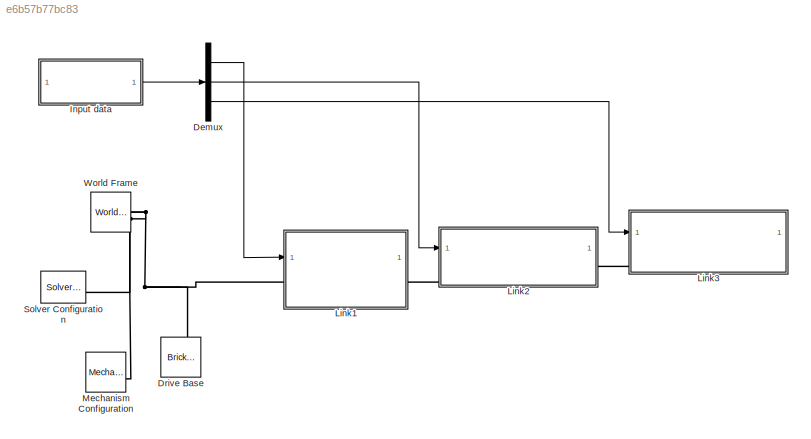
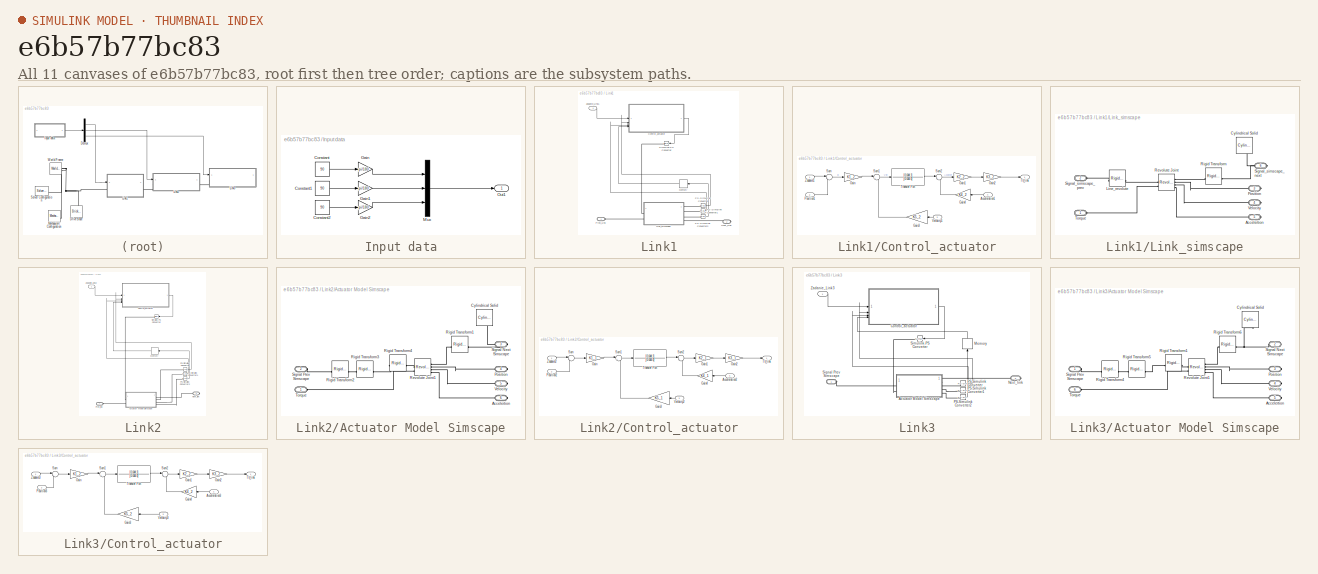
[diagram: thumbnail index - all 11 canvases of the model, root first then tree order]
MODEL slx_e6b57b77bc83
KIND model
CONFIG AbsTol = auto
CONFIG EnableMultiTasking = off
CONFIG FixedStep = 1e-3
CONFIG MaxStep = 1e-3
CONFIG MinStep = auto
CONFIG RelTol = 1e-3
CONFIG SampleTimeConstraint = Unconstrained
CONFIG SolverName = VariableStepAuto
CONFIG StartTime = 0.0
CONFIG StopTime = 5
BLOCK [Demux] Demux
  Outputs = 3
BLOCK [Reference] Drive Base  REF=sm_lib/Body Elements/Brick Solid
  NameLocation = right
  SourceBlock = sm_lib/Body Elements/Brick Solid
  SourceType = Brick Solid
BLOCK [SubSystem] Input data
BLOCK [Constant] Input data/Constant
  Value = 90
BLOCK [Constant] Input data/Constant1
  Value = 90
BLOCK [Constant] Input data/Constant2
  Value = 90
BLOCK [Gain] Input data/Gain
  Gain = pi/180
BLOCK [Gain] Input data/Gain1
  Gain = pi/180
BLOCK [Gain] Input data/Gain2
  Gain = pi/180
BLOCK [Mux] Input data/Mux
  DisplayOption = bar
  Inputs = 3
BLOCK [Outport] Input data/Out1
BLOCK [SubSystem] Link1
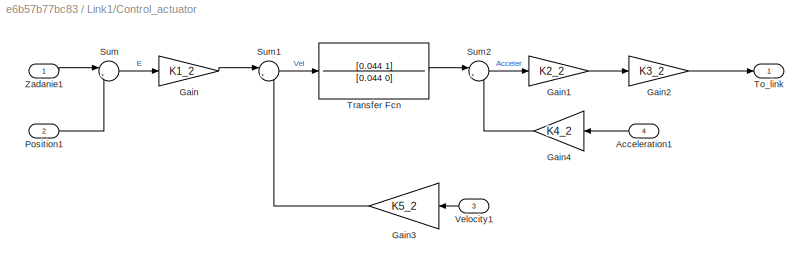
BLOCK [SubSystem] Link1/Control_actuator
BLOCK [Inport] Link1/Control_actuator/Acceleration1
  Port = 4
BLOCK [Gain] Link1/Control_actuator/Gain
  Gain = K1_2
BLOCK [Gain] Link1/Control_actuator/Gain1
  Gain = K2_2
BLOCK [Gain] Link1/Control_actuator/Gain2
  Gain = K3_2
BLOCK [Gain] Link1/Control_actuator/Gain3
  Gain = K5_2
  NameLocation = top
BLOCK [Gain] Link1/Control_actuator/Gain4
  Gain = K4_2
  NameLocation = top
BLOCK [Inport] Link1/Control_actuator/Position1
  Port = 2
BLOCK [Sum] Link1/Control_actuator/Sum
  Inputs = |+-
BLOCK [Sum] Link1/Control_actuator/Sum1
  Inputs = |+-
BLOCK [Sum] Link1/Control_actuator/Sum2
  Inputs = |+-
BLOCK [Outport] Link1/Control_actuator/To_link
BLOCK [TransferFcn] Link1/Control_actuator/Transfer Fcn
  Denominator = [0.044 0]
  Numerator = [0.044 1]
BLOCK [Inport] Link1/Control_actuator/Velocity1
  Port = 3
BLOCK [Inport] Link1/Control_actuator/Zadanie1
BLOCK [SubSystem] Link1/Link_simscape
BLOCK [PMIOPort] Link1/Link_simscape/Accelertion
  Port = 5
  Side = Right
BLOCK [Reference] Link1/Link_simscape/Cylindrical Solid  REF=sm_lib/Body Elements/Cylindrical Solid
  NameLocation = left
  SourceBlock = sm_lib/Body Elements/Cylindrical Solid
  SourceType = Cylindrical Solid
BLOCK [Reference] Link1/Link_simscape/Line_revolute  REF=sm_lib/Frames and
Transforms/Rigid
Transform
  SourceBlock = sm_lib/Frames and\nTransforms/Rigid\nTransform
  SourceType = Rigid\nTransform
BLOCK [PMIOPort] Link1/Link_simscape/Position
  Port = 3
  Side = Right
BLOCK [Reference] Link1/Link_simscape/Revolute Joint  REF=sm_lib/Joints/Revolute Joint
  SourceBlock = sm_lib/Joints/Revolute Joint
  SourceType = Revolute Joint
BLOCK [Reference] Link1/Link_simscape/Rigid Transform  REF=sm_lib/Frames and
Transforms/Rigid
Transform
  SourceBlock = sm_lib/Frames and\nTransforms/Rigid\nTransform
  SourceType = Rigid\nTransform
BLOCK [PMIOPort] Link1/Link_simscape/Signal_simscape_next
  Port = 6
  Side = Right
BLOCK [PMIOPort] Link1/Link_simscape/Signal_simscape_prev
  Port = 2
  Side = Left
BLOCK [PMIOPort] Link1/Link_simscape/Torque
  Side = Left
BLOCK [PMIOPort] Link1/Link_simscape/Velocity
  Port = 4
  Side = Right
BLOCK [Memory] Link1/Memory
  NameLocation = top
BLOCK [PMIOPort] Link1/Next_Link
  Port = 2
  Side = Right
BLOCK [Reference] Link1/PS-Simulink Converter  REF=nesl_utility/PS-Simulink
Converter
  SourceBlock = nesl_utility/PS-Simulink\nConverter
  SourceType = PS-Simulink\nConverter
BLOCK [Reference] Link1/PS-Simulink Converter1  REF=nesl_utility/PS-Simulink
Converter
  SourceBlock = nesl_utility/PS-Simulink\nConverter
  SourceType = PS-Simulink\nConverter
BLOCK [Reference] Link1/PS-Simulink Converter2  REF=nesl_utility/PS-Simulink
Converter
  SourceBlock = nesl_utility/PS-Simulink\nConverter
  SourceType = PS-Simulink\nConverter
BLOCK [PMIOPort] Link1/Prev_Link
  Side = Left
BLOCK [Reference] Link1/Simulink-PS Converter  REF=nesl_utility/Simulink-PS
Converter
  NameLocation = top
  SourceBlock = nesl_utility/Simulink-PS\nConverter
  SourceType = Simulink-PS\nConverter
BLOCK [Inport] Link1/Zadanie_Link1
BLOCK [SubSystem] Link2
BLOCK [SubSystem] Link2/Actuator Model Simscape
BLOCK [PMIOPort] Link2/Actuator Model Simscape/Accelertion
  Port = 6
  Side = Right
BLOCK [Reference] Link2/Actuator Model Simscape/Cylindrical Solid  REF=sm_lib/Body Elements/Cylindrical Solid
  NameLocation = left
  SourceBlock = sm_lib/Body Elements/Cylindrical Solid
  SourceType = Cylindrical Solid
BLOCK [PMIOPort] Link2/Actuator Model Simscape/Position
  Port = 4
  Side = Right
BLOCK [Reference] Link2/Actuator Model Simscape/Revolute Joint1  REF=sm_lib/Joints/Revolute Joint
  SourceBlock = sm_lib/Joints/Revolute Joint
  SourceType = Revolute Joint
BLOCK [Reference] Link2/Actuator Model Simscape/Rigid Transform1  REF=sm_lib/Frames and
Transforms/Rigid
Transform
  SourceBlock = sm_lib/Frames and\nTransforms/Rigid\nTransform
  SourceType = Rigid\nTransform
BLOCK [Reference] Link2/Actuator Model Simscape/Rigid Transform2  REF=sm_lib/Frames and
Transforms/Rigid
Transform
  SourceBlock = sm_lib/Frames and\nTransforms/Rigid\nTransform
  SourceType = Rigid\nTransform
BLOCK [Reference] Link2/Actuator Model Simscape/Rigid Transform3  REF=sm_lib/Frames and
Transforms/Rigid
Transform
  SourceBlock = sm_lib/Frames and\nTransforms/Rigid\nTransform
  SourceType = Rigid\nTransform
BLOCK [Reference] Link2/Actuator Model Simscape/Rigid Transform4  REF=sm_lib/Frames and
Transforms/Rigid
Transform
  SourceBlock = sm_lib/Frames and\nTransforms/Rigid\nTransform
  SourceType = Rigid\nTransform
BLOCK [PMIOPort] Link2/Actuator Model Simscape/Signal Next Simscape
  Port = 3
  Side = Right
BLOCK [PMIOPort] Link2/Actuator Model Simscape/Signal Prev Simscape
  Port = 2
  Side = Left
BLOCK [PMIOPort] Link2/Actuator Model Simscape/Torque
  Side = Left
BLOCK [PMIOPort] Link2/Actuator Model Simscape/Velocity
  Port = 5
  Side = Right
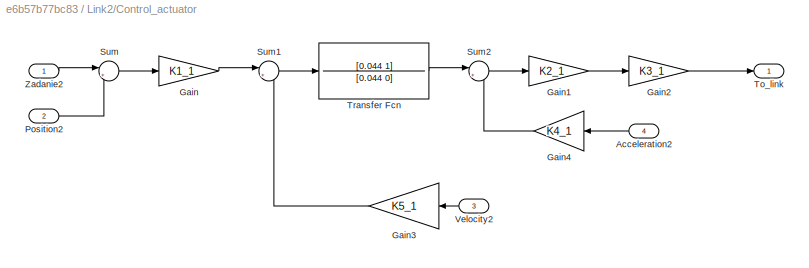
BLOCK [SubSystem] Link2/Control_actuator
BLOCK [Inport] Link2/Control_actuator/Acceleration2
  Port = 4
BLOCK [Gain] Link2/Control_actuator/Gain
  Gain = K1_1
BLOCK [Gain] Link2/Control_actuator/Gain1
  Gain = K2_1
BLOCK [Gain] Link2/Control_actuator/Gain2
  Gain = K3_1
BLOCK [Gain] Link2/Control_actuator/Gain3
  Gain = K5_1
  NameLocation = top
BLOCK [Gain] Link2/Control_actuator/Gain4
  Gain = K4_1
  NameLocation = top
BLOCK [Inport] Link2/Control_actuator/Position2
  Port = 2
BLOCK [Sum] Link2/Control_actuator/Sum
  Inputs = |+-
BLOCK [Sum] Link2/Control_actuator/Sum1
  Inputs = |+-
BLOCK [Sum] Link2/Control_actuator/Sum2
  Inputs = |+-
BLOCK [Outport] Link2/Control_actuator/To_link
BLOCK [TransferFcn] Link2/Control_actuator/Transfer Fcn
  Denominator = [0.044 0]
  Numerator = [0.044 1]
BLOCK [Inport] Link2/Control_actuator/Velocity2
  Port = 3
BLOCK [Inport] Link2/Control_actuator/Zadanie2
BLOCK [Memory] Link2/Memory
BLOCK [PMIOPort] Link2/Next_link
  Port = 2
  Side = Right
BLOCK [Reference] Link2/PS-Simulink Converter  REF=nesl_utility/PS-Simulink
Converter
  SourceBlock = nesl_utility/PS-Simulink\nConverter
  SourceType = PS-Simulink\nConverter
BLOCK [Reference] Link2/PS-Simulink Converter1  REF=nesl_utility/PS-Simulink
Converter
  SourceBlock = nesl_utility/PS-Simulink\nConverter
  SourceType = PS-Simulink\nConverter
BLOCK [Reference] Link2/PS-Simulink Converter2  REF=nesl_utility/PS-Simulink
Converter
  SourceBlock = nesl_utility/PS-Simulink\nConverter
  SourceType = PS-Simulink\nConverter
BLOCK [PMIOPort] Link2/Prev_link
  Side = Left
BLOCK [Reference] Link2/Simulink-PS Converter  REF=nesl_utility/Simulink-PS
Converter
  NameLocation = top
  SourceBlock = nesl_utility/Simulink-PS\nConverter
  SourceType = Simulink-PS\nConverter
BLOCK [Inport] Link2/Zadanie_Link2
BLOCK [SubSystem] Link3
BLOCK [SubSystem] Link3/Actuator Model Simscape
BLOCK [PMIOPort] Link3/Actuator Model Simscape/Accelertion
  Port = 5
  Side = Right
BLOCK [Reference] Link3/Actuator Model Simscape/Cylindrical Solid  REF=sm_lib/Body Elements/Cylindrical Solid
  NameLocation = left
  SourceBlock = sm_lib/Body Elements/Cylindrical Solid
  SourceType = Cylindrical Solid
BLOCK [PMIOPort] Link3/Actuator Model Simscape/Position
  Port = 3
  Side = Right
BLOCK [Reference] Link3/Actuator Model Simscape/Revolute Joint1  REF=sm_lib/Joints/Revolute Joint
  SourceBlock = sm_lib/Joints/Revolute Joint
  SourceType = Revolute Joint
BLOCK [Reference] Link3/Actuator Model Simscape/Rigid Transform1  REF=sm_lib/Frames and
Transforms/Rigid
Transform
  SourceBlock = sm_lib/Frames and\nTransforms/Rigid\nTransform
  SourceType = Rigid\nTransform
BLOCK [Reference] Link3/Actuator Model Simscape/Rigid Transform4  REF=sm_lib/Frames and
Transforms/Rigid
Transform
  SourceBlock = sm_lib/Frames and\nTransforms/Rigid\nTransform
  SourceType = Rigid\nTransform
BLOCK [Reference] Link3/Actuator Model Simscape/Rigid Transform5  REF=sm_lib/Frames and
Transforms/Rigid
Transform
  SourceBlock = sm_lib/Frames and\nTransforms/Rigid\nTransform
  SourceType = Rigid\nTransform
BLOCK [Reference] Link3/Actuator Model Simscape/Rigid Transform6  REF=sm_lib/Frames and
Transforms/Rigid
Transform
  SourceBlock = sm_lib/Frames and\nTransforms/Rigid\nTransform
  SourceType = Rigid\nTransform
BLOCK [PMIOPort] Link3/Actuator Model Simscape/Signal Next Simscape
  Port = 2
  Side = Right
BLOCK [PMIOPort] Link3/Actuator Model Simscape/Signal Prev Simscape
  Side = Left
BLOCK [PMIOPort] Link3/Actuator Model Simscape/Torque
  Port = 6
  Side = Left
BLOCK [PMIOPort] Link3/Actuator Model Simscape/Velocity
  Port = 4
  Side = Right
BLOCK [SubSystem] Link3/Control_actuator
BLOCK [Inport] Link3/Control_actuator/Acceleration3
  Port = 4
BLOCK [Gain] Link3/Control_actuator/Gain
  Gain = K1_2
BLOCK [Gain] Link3/Control_actuator/Gain1
  Gain = K2_2
BLOCK [Gain] Link3/Control_actuator/Gain2
  Gain = K3_2
BLOCK [Gain] Link3/Control_actuator/Gain3
  Gain = K5_2
  NameLocation = top
BLOCK [Gain] Link3/Control_actuator/Gain4
  Gain = K4_2
  NameLocation = top
BLOCK [Inport] Link3/Control_actuator/Position3
  Port = 2
BLOCK [Sum] Link3/Control_actuator/Sum
  Inputs = |+-
BLOCK [Sum] Link3/Control_actuator/Sum1
  Inputs = |+-
BLOCK [Sum] Link3/Control_actuator/Sum2
  Inputs = |+-
BLOCK [Outport] Link3/Control_actuator/To_link
BLOCK [TransferFcn] Link3/Control_actuator/Transfer Fcn
  Denominator = [0.044 0]
  Numerator = [0.044 1]
BLOCK [Inport] Link3/Control_actuator/Velocity3
  Port = 3
BLOCK [Inport] Link3/Control_actuator/Zadanie3
BLOCK [Memory] Link3/Memory
  NameLocation = right
BLOCK [PMIOPort] Link3/Next_link
  Port = 2
  Side = Right
BLOCK [Reference] Link3/PS-Simulink Converter  REF=nesl_utility/PS-Simulink
Converter
  SourceBlock = nesl_utility/PS-Simulink\nConverter
  SourceType = PS-Simulink\nConverter
BLOCK [Reference] Link3/PS-Simulink Converter1  REF=nesl_utility/PS-Simulink
Converter
  SourceBlock = nesl_utility/PS-Simulink\nConverter
  SourceType = PS-Simulink\nConverter
BLOCK [Reference] Link3/PS-Simulink Converter2  REF=nesl_utility/PS-Simulink
Converter
  SourceBlock = nesl_utility/PS-Simulink\nConverter
  SourceType = PS-Simulink\nConverter
BLOCK [PMIOPort] Link3/Signal Prev Simscape
  Side = Left
BLOCK [Reference] Link3/Simulink-PS Converter  REF=nesl_utility/Simulink-PS
Converter
  NameLocation = top
  SourceBlock = nesl_utility/Simulink-PS\nConverter
  SourceType = Simulink-PS\nConverter
BLOCK [Inport] Link3/Zadanie_Link3
BLOCK [Reference] Mechanism Configuration  REF=sm_lib/Utilities/Mechanism
Configuration
  SourceBlock = sm_lib/Utilities/Mechanism\nConfiguration
  SourceType = Mechanism\nConfiguration
BLOCK [Reference] Solver Configuration  REF=nesl_utility/Solver
Configuration
  SourceBlock = nesl_utility/Solver\nConfiguration
  SourceType = Solver\nConfiguration
BLOCK [Reference] World Frame  REF=sm_lib/Frames and
Transforms/World Frame
  SourceBlock = sm_lib/Frames and\nTransforms/World Frame
  SourceType = World Frame
LINE Demux:1 -> Link1:1
LINE Demux:2 -> Link2:1
LINE Demux:3 -> Link3:1
LINE Input data/Constant1:1 -> Input data/Gain1:1
LINE Input data/Constant2:1 -> Input data/Gain2:1
LINE Input data/Constant:1 -> Input data/Gain:1
LINE Input data/Gain1:1 -> Input data/Mux:2
LINE Input data/Gain2:1 -> Input data/Mux:3
LINE Input data/Gain:1 -> Input data/Mux:1
LINE Input data/Mux:1 -> Input data/Out1:1
LINE Input data:1 -> Demux:1
LINE Link1/Control_actuator/Acceleration1:1 -> Link1/Control_actuator/Gain4:1
LINE Link1/Control_actuator/Gain1:1 -> Link1/Control_actuator/Gain2:1
LINE Link1/Control_actuator/Gain2:1 -> Link1/Control_actuator/To_link:1
LINE Link1/Control_actuator/Gain3:1 -> Link1/Control_actuator/Sum1:2
LINE Link1/Control_actuator/Gain4:1 -> Link1/Control_actuator/Sum2:2
LINE Link1/Control_actuator/Gain:1 -> Link1/Control_actuator/Sum1:1
LINE Link1/Control_actuator/Position1:1 -> Link1/Control_actuator/Sum:2
LINE Link1/Control_actuator/Sum1:1 -> Link1/Control_actuator/Transfer Fcn:1
LINE Link1/Control_actuator/Sum2:1 -> Link1/Control_actuator/Gain1:1
LINE Link1/Control_actuator/Sum:1 -> Link1/Control_actuator/Gain:1
LINE Link1/Control_actuator/Transfer Fcn:1 -> Link1/Control_actuator/Sum2:1
LINE Link1/Control_actuator/Velocity1:1 -> Link1/Control_actuator/Gain3:1
LINE Link1/Control_actuator/Zadanie1:1 -> Link1/Control_actuator/Sum:1
LINE Link1/Control_actuator:1 -> Link1/Simulink-PS Converter:1
LINE Link1/Memory:1 -> Link1/Control_actuator:4
LINE Link1/PS-Simulink Converter1:1 -> Link1/Control_actuator:3
LINE Link1/PS-Simulink Converter2:1 -> Link1/Memory:1
LINE Link1/PS-Simulink Converter:1 -> Link1/Control_actuator:2
LINE Link1/Zadanie_Link1:1 -> Link1/Control_actuator:1
LINE Link2/Control_actuator/Acceleration2:1 -> Link2/Control_actuator/Gain4:1
LINE Link2/Control_actuator/Gain1:1 -> Link2/Control_actuator/Gain2:1
LINE Link2/Control_actuator/Gain2:1 -> Link2/Control_actuator/To_link:1
LINE Link2/Control_actuator/Gain3:1 -> Link2/Control_actuator/Sum1:2
LINE Link2/Control_actuator/Gain4:1 -> Link2/Control_actuator/Sum2:2
LINE Link2/Control_actuator/Gain:1 -> Link2/Control_actuator/Sum1:1
LINE Link2/Control_actuator/Position2:1 -> Link2/Control_actuator/Sum:2
LINE Link2/Control_actuator/Sum1:1 -> Link2/Control_actuator/Transfer Fcn:1
LINE Link2/Control_actuator/Sum2:1 -> Link2/Control_actuator/Gain1:1
LINE Link2/Control_actuator/Sum:1 -> Link2/Control_actuator/Gain:1
LINE Link2/Control_actuator/Transfer Fcn:1 -> Link2/Control_actuator/Sum2:1
LINE Link2/Control_actuator/Velocity2:1 -> Link2/Control_actuator/Gain3:1
LINE Link2/Control_actuator/Zadanie2:1 -> Link2/Control_actuator/Sum:1
LINE Link2/Control_actuator:1 -> Link2/Simulink-PS Converter:1
LINE Link2/Memory:1 -> Link2/Control_actuator:4
LINE Link2/PS-Simulink Converter1:1 -> Link2/Control_actuator:3
LINE Link2/PS-Simulink Converter2:1 -> Link2/Memory:1
LINE Link2/PS-Simulink Converter:1 -> Link2/Control_actuator:2
LINE Link2/Zadanie_Link2:1 -> Link2/Control_actuator:1
LINE Link3/Control_actuator/Acceleration3:1 -> Link3/Control_actuator/Gain4:1
LINE Link3/Control_actuator/Gain1:1 -> Link3/Control_actuator/Gain2:1
LINE Link3/Control_actuator/Gain2:1 -> Link3/Control_actuator/To_link:1
LINE Link3/Control_actuator/Gain3:1 -> Link3/Control_actuator/Sum1:2
LINE Link3/Control_actuator/Gain4:1 -> Link3/Control_actuator/Sum2:2
LINE Link3/Control_actuator/Gain:1 -> Link3/Control_actuator/Sum1:1
LINE Link3/Control_actuator/Position3:1 -> Link3/Control_actuator/Sum:2
LINE Link3/Control_actuator/Sum1:1 -> Link3/Control_actuator/Transfer Fcn:1
LINE Link3/Control_actuator/Sum2:1 -> Link3/Control_actuator/Gain1:1
LINE Link3/Control_actuator/Sum:1 -> Link3/Control_actuator/Gain:1
LINE Link3/Control_actuator/Transfer Fcn:1 -> Link3/Control_actuator/Sum2:1
LINE Link3/Control_actuator/Velocity3:1 -> Link3/Control_actuator/Gain3:1
LINE Link3/Control_actuator/Zadanie3:1 -> Link3/Control_actuator/Sum:1
LINE Link3/Control_actuator:1 -> Link3/Simulink-PS Converter:1
LINE Link3/Memory:1 -> Link3/Control_actuator:4
LINE Link3/PS-Simulink Converter1:1 -> Link3/Control_actuator:3
LINE Link3/PS-Simulink Converter2:1 -> Link3/Memory:1
LINE Link3/PS-Simulink Converter:1 -> Link3/Control_actuator:2
LINE Link3/Zadanie_Link3:1 -> Link3/Control_actuator:1
PNET net1: Drive Base:RConn1 -- Link1:LConn1 -- Mechanism Configuration:RConn1 -- Solver Configuration:RConn1 -- World Frame:RConn1
PLINE Link1/Link_simscape/Accelertion:RConn1 -- Link1/Link_simscape/Revolute Joint:RConn4
PNET net2: Link1/Link_simscape/Cylindrical Solid:RConn1 -- Link1/Link_simscape/Rigid Transform:RConn1 -- Link1/Link_simscape/Signal_simscape_next:RConn1
PLINE Link1/Link_simscape/Line_revolute:LConn1 -- Link1/Link_simscape/Signal_simscape_prev:RConn1
PLINE Link1/Link_simscape/Line_revolute:RConn1 -- Link1/Link_simscape/Revolute Joint:LConn1
PLINE Link1/Link_simscape/Position:RConn1 -- Link1/Link_simscape/Revolute Joint:RConn2
PLINE Link1/Link_simscape/Revolute Joint:LConn2 -- Link1/Link_simscape/Torque:RConn1
PLINE Link1/Link_simscape/Revolute Joint:RConn1 -- Link1/Link_simscape/Rigid Transform:LConn1
PLINE Link1/Link_simscape/Revolute Joint:RConn3 -- Link1/Link_simscape/Velocity:RConn1
PLINE Link1/Link_simscape:LConn1 -- Link1/Simulink-PS Converter:RConn1
PLINE Link1/Link_simscape:LConn2 -- Link1/Prev_Link:RConn1
PLINE Link1/Link_simscape:RConn1 -- Link1/PS-Simulink Converter:LConn1
PLINE Link1/Link_simscape:RConn2 -- Link1/PS-Simulink Converter1:LConn1
PLINE Link1/Link_simscape:RConn3 -- Link1/PS-Simulink Converter2:LConn1
PLINE Link1/Link_simscape:RConn4 -- Link1/Next_Link:RConn1
PLINE Link1:RConn1 -- Link2:LConn1
PLINE Link2/Actuator Model Simscape/Accelertion:RConn1 -- Link2/Actuator Model Simscape/Revolute Joint1:RConn4
PNET net3: Link2/Actuator Model Simscape/Cylindrical Solid:RConn1 -- Link2/Actuator Model Simscape/Rigid Transform1:RConn1 -- Link2/Actuator Model Simscape/Signal Next Simscape:RConn1
PLINE Link2/Actuator Model Simscape/Position:RConn1 -- Link2/Actuator Model Simscape/Revolute Joint1:RConn2
PLINE Link2/Actuator Model Simscape/Revolute Joint1:LConn1 -- Link2/Actuator Model Simscape/Rigid Transform4:RConn1
PLINE Link2/Actuator Model Simscape/Revolute Joint1:LConn2 -- Link2/Actuator Model Simscape/Torque:RConn1
PLINE Link2/Actuator Model Simscape/Revolute Joint1:RConn1 -- Link2/Actuator Model Simscape/Rigid Transform1:LConn1
PLINE Link2/Actuator Model Simscape/Revolute Joint1:RConn3 -- Link2/Actuator Model Simscape/Velocity:RConn1
PLINE Link2/Actuator Model Simscape/Rigid Transform2:LConn1 -- Link2/Actuator Model Simscape/Signal Prev Simscape:RConn1
PLINE Link2/Actuator Model Simscape/Rigid Transform2:RConn1 -- Link2/Actuator Model Simscape/Rigid Transform3:LConn1
PLINE Link2/Actuator Model Simscape/Rigid Transform3:RConn1 -- Link2/Actuator Model Simscape/Rigid Transform4:LConn1
PLINE Link2/Actuator Model Simscape:LConn1 -- Link2/Simulink-PS Converter:RConn1
PLINE Link2/Actuator Model Simscape:LConn2 -- Link2/Prev_link:RConn1
PLINE Link2/Actuator Model Simscape:RConn1 -- Link2/Next_link:RConn1
PLINE Link2/Actuator Model Simscape:RConn2 -- Link2/PS-Simulink Converter:LConn1
PLINE Link2/Actuator Model Simscape:RConn3 -- Link2/PS-Simulink Converter1:LConn1
PLINE Link2/Actuator Model Simscape:RConn4 -- Link2/PS-Simulink Converter2:LConn1
PLINE Link2:RConn1 -- Link3:LConn1
PLINE Link3/Actuator Model Simscape/Accelertion:RConn1 -- Link3/Actuator Model Simscape/Revolute Joint1:RConn4
PNET net4: Link3/Actuator Model Simscape/Cylindrical Solid:RConn1 -- Link3/Actuator Model Simscape/Rigid Transform6:RConn1 -- Link3/Actuator Model Simscape/Signal Next Simscape:RConn1
PLINE Link3/Actuator Model Simscape/Position:RConn1 -- Link3/Actuator Model Simscape/Revolute Joint1:RConn2
PLINE Link3/Actuator Model Simscape/Revolute Joint1:LConn1 -- Link3/Actuator Model Simscape/Rigid Transform1:RConn1
PLINE Link3/Actuator Model Simscape/Revolute Joint1:LConn2 -- Link3/Actuator Model Simscape/Torque:RConn1
PLINE Link3/Actuator Model Simscape/Revolute Joint1:RConn1 -- Link3/Actuator Model Simscape/Rigid Transform6:LConn1
PLINE Link3/Actuator Model Simscape/Revolute Joint1:RConn3 -- Link3/Actuator Model Simscape/Velocity:RConn1
PLINE Link3/Actuator Model Simscape/Rigid Transform1:LConn1 -- Link3/Actuator Model Simscape/Rigid Transform5:RConn1
PLINE Link3/Actuator Model Simscape/Rigid Transform4:LConn1 -- Link3/Actuator Model Simscape/Signal Prev Simscape:RConn1
PLINE Link3/Actuator Model Simscape/Rigid Transform4:RConn1 -- Link3/Actuator Model Simscape/Rigid Transform5:LConn1
PLINE Link3/Actuator Model Simscape:LConn1 -- Link3/Signal Prev Simscape:RConn1
PLINE Link3/Actuator Model Simscape:LConn2 -- Link3/Simulink-PS Converter:RConn1
PLINE Link3/Actuator Model Simscape:RConn1 -- Link3/Next_link:RConn1
PLINE Link3/Actuator Model Simscape:RConn2 -- Link3/PS-Simulink Converter:LConn1
PLINE Link3/Actuator Model Simscape:RConn3 -- Link3/PS-Simulink Converter1:LConn1
PLINE Link3/Actuator Model Simscape:RConn4 -- Link3/PS-Simulink Converter2:LConn1
note: PNET lines group multi-terminal physical nets as a canonical sorted terminal list (undirected conserving connections); 2-terminal nets keep the pairwise PLINE form
